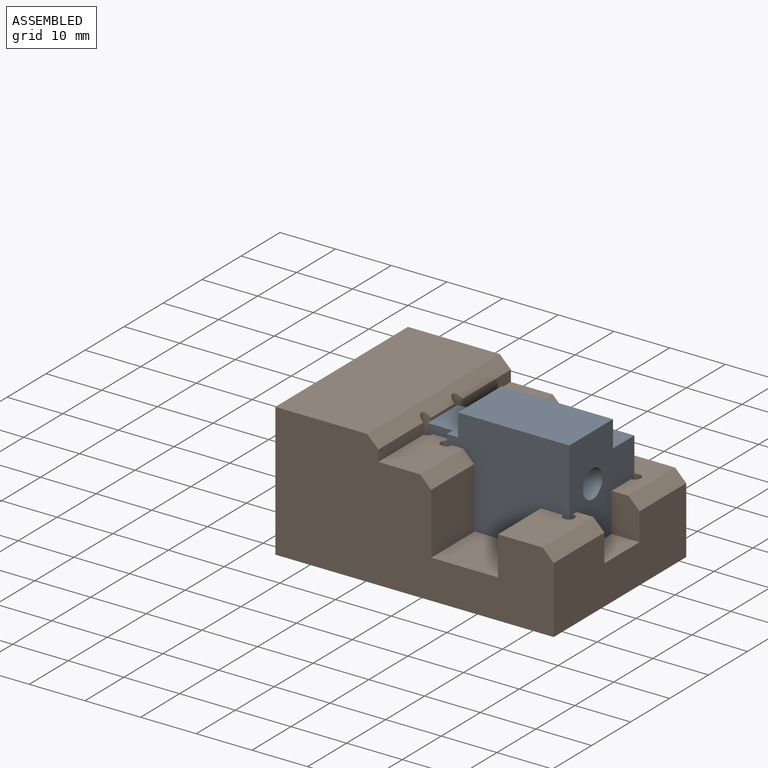
[diagram: assembled view]
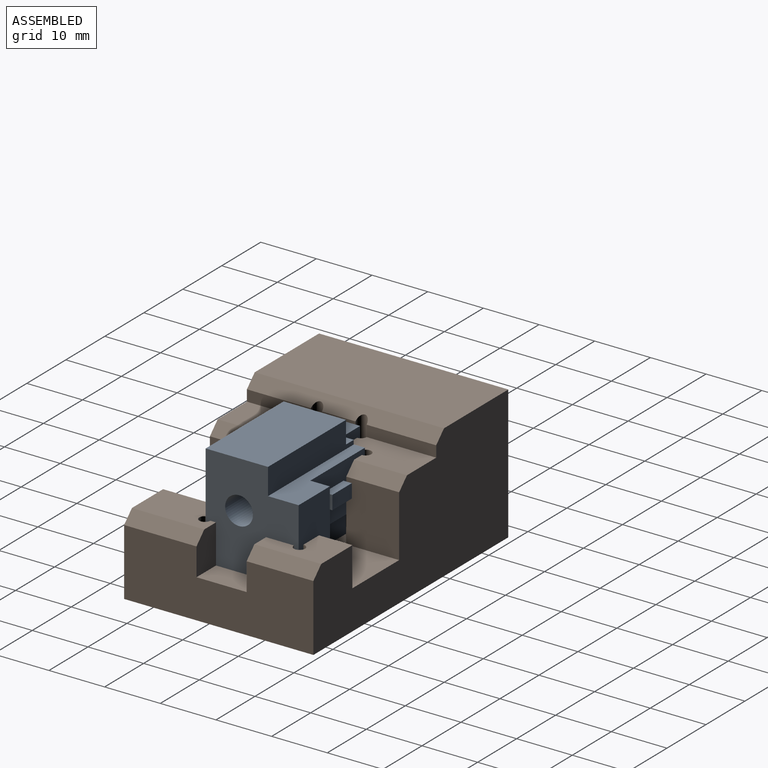
[diagram: assembled view, second angle]
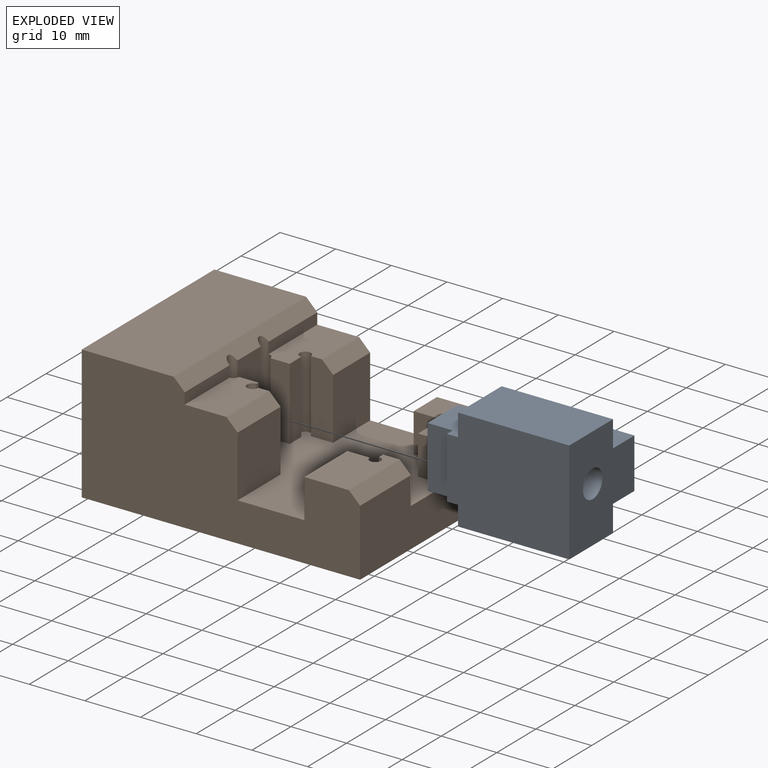
[diagram: exploded view]
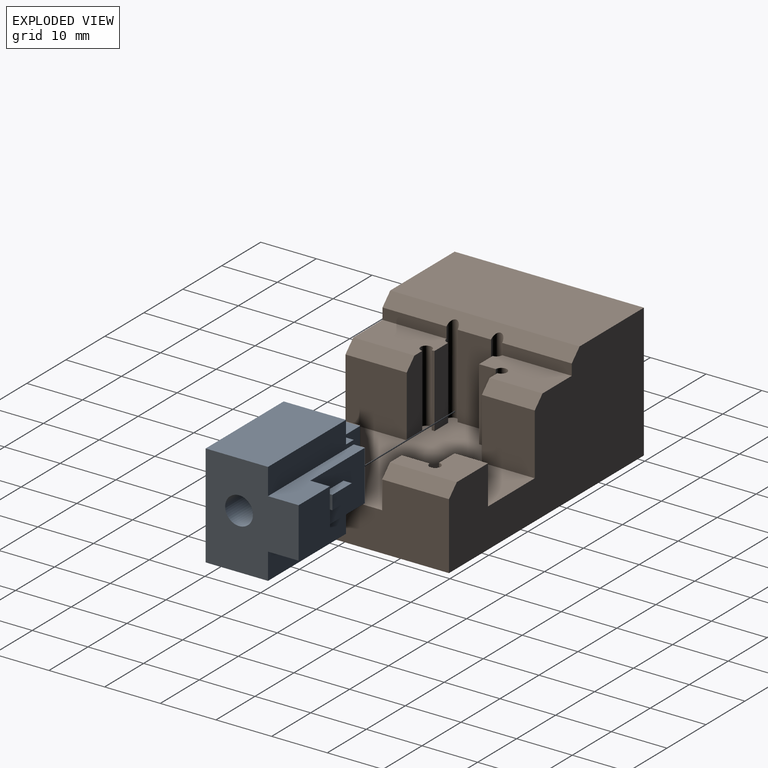
[diagram: exploded view, second angle]
ASSEMBLY  parts=2 mates=2
PART A: 26 faces, bbox 16.7x26.5x18.5 mm
  f0: plane 18.5x16.7mm, normal (0,-1,0), area 237.1mm2, adj f1,f8,f12,f13,f21,f22,f23,f24
  f1: plane 9x8mm, normal (1,0,0), area 72mm2, adj f0,f6,f23,f24
  f2: plane 14x9mm, normal (1,0,0), area 113.5mm2, adj f3,f6,f14,f15,f16,f17,f23,f24
  f3: plane 11x4mm, normal (0,1,0), area 40mm2, adj f2,f5,f11,f20,f22,f23,f24,f25
  f4: plane 11.2x4mm, normal (0,1,0), area 44.8mm2, adj f5,f8,f12,f22
  f5: plane 11.2x6.5mm, normal (0,0,1), area 57.1mm2, adj f3,f4,f7,f8,f9,f10,f11,f22
  f6: plane 9x3.5mm, normal (0,1,0), area 31.5mm2, adj f1,f2,f23,f24
  f7: plane 11x7.7mm, normal (0,1,0), area 65.1mm2, adj f5,f9,f11,f20,f21
  f8: plane 22x18.5mm, normal (-1,0,0), area 392mm2, adj f0,f4,f5,f10,f12,f13,f19,f20
  f9: plane 11x4.5mm, normal (-1,0,0), area 49.5mm2, adj f5,f7,f10,f20
  f10: plane 11x1.5mm, normal (0,1,0), area 16.5mm2, adj f5,f8,f9,f20
  f11: plane 11x4.5mm, normal (1,0,0), area 49.5mm2, adj f3,f5,f7,f20
  f12: plane 20x11.2mm, normal (0,0,1), area 224mm2, adj f0,f4,f8,f22
  f13: plane 20x11.2mm, normal (0,0,-1), area 224mm2, adj f0,f8,f19,f25
  f14: plane 5x1.5mm, normal (0,0,-1), area 7.5mm2, adj f2,f15,f17,f18
  f15: plane 2.5x1.5mm, normal (0,1,0), area 3.7mm2, adj f2,f14,f16,f18
  f16: plane 5x1.5mm, normal (0,0,1), area 7.5mm2, adj f2,f15,f17,f18
  f17: plane 2.5x1.5mm, normal (0,-1,0), area 3.7mm2, adj f2,f14,f16,f18
  f18: plane 5x2.5mm, normal (1,0,0), area 12.5mm2, adj f14,f15,f16,f17
  f19: plane 11.2x3.5mm, normal (0,1,0), area 39.2mm2, adj f8,f13,f20,f25
  f20: plane 11.2x6.5mm, normal (0,0,-1), area 57.1mm2, adj f3,f7,f8,f9,f10,f11,f19,f25
  f21: cylinder r=2.5mm len=26.5mm, axis (0,-1,0), area 416.3mm2, adj f0,f7
  f22: plane 22x4.75mm, normal (1,0,0), area 96.5mm2, adj f0,f3,f4,f5,f12,f23
  f23: plane 22x5.5mm, normal (0,0,1), area 72mm2, adj f0,f1,f2,f3,f6,f22
  f24: plane 22x5.5mm, normal (0,0,-1), area 72mm2, adj f0,f1,f2,f3,f6,f25
  f25: plane 22x4.75mm, normal (1,0,0), area 97.5mm2, adj f0,f3,f13,f19,f20,f24
PART B: 43 faces, bbox 50x34x24 mm
  f0: plane 34x16.5mm, normal (0,0,1), area 561mm2, adj f7,f8,f11,f42
  f1: plane 12.5x2mm, normal (1,0,0), area 25mm2, adj f8,f30,f35,f42
  f2: plane 15x6mm, normal (1,0,0), area 90mm2, adj f4,f32,f35,f42
  f3: plane 11x9.5mm, normal (1,0,0), area 104.5mm2, adj f4,f8,f29,f39
  f4: plane 34x32.5mm, normal (0,0,1), area 655.6mm2, adj f2,f3,f5,f6,f7,f8,f9,f10
  f5: plane 13x3mm, normal (1,0,0), area 39mm2, adj f4,f25,f30,f34
  f6: plane 13x0.5mm, normal (1,0,0), area 6.5mm2, adj f4,f24,f31,f33
  f7: plane 50x24mm, normal (0,-1,0), area 852mm2, adj f0,f4,f9,f11,f13,f18,f23,f26
  f8: plane 50x24mm, normal (0,1,0), area 852mm2, adj f0,f1,f3,f4,f9,f11,f13,f21
  f9: plane 34x12mm, normal (1,0,0), area 363mm2, adj f4,f7,f8,f13,f14,f15,f40,f41
  f10: plane 7x1mm, normal (-1,0,0), area 7mm2, adj f4,f15,f23,f36
  f11: plane 34x24mm, normal (-1,0,0), area 777.5mm2, adj f0,f7,f8,f13,f16
  f12: plane 7x5mm, normal (-1,0,0), area 35mm2, adj f4,f14,f22,f37
  f13: plane 50x34mm, normal (0,0,-1), area 1700mm2, adj f7,f8,f9,f11
  f14: plane 7x5mm, normal (0,-1,0), area 33mm2, adj f4,f9,f12,f22,f41
  f15: plane 7x5mm, normal (0,1,0), area 33mm2, adj f4,f9,f10,f23,f40
  f16: cylinder r=3.5mm len=7mm, axis (-1,0,0), area 131.9mm2, adj f11,f17
  f17: plane 7x7mm, normal (-1,0,0), area 38.5mm2, adj f16
  f18: plane 11x7mm, normal (-1,0,0), area 77mm2, adj f4,f7,f19,f23
  f19: plane 7x4mm, normal (0,1,0), area 28mm2, adj f4,f18,f23,f36
  f20: plane 7x4mm, normal (0,-1,0), area 28mm2, adj f4,f21,f22,f37
  f21: plane 7x6mm, normal (-1,0,0), area 42mm2, adj f4,f8,f20,f22
  f22: plane 12x8mm, normal (0,0,1), area 63.6mm2, adj f8,f12,f14,f20,f21,f37,f41
  f23: plane 13x8mm, normal (0,0,1), area 91.6mm2, adj f7,f10,f15,f18,f19,f36,f40
  f24: plane 13x3.5mm, normal (0,1,0), area 45.5mm2, adj f4,f6,f31,f32
  f25: plane 13x3.5mm, normal (0,-1,0), area 45.5mm2, adj f4,f5,f30,f35
  f26: plane 11.5x2mm, normal (1,0,0), area 23mm2, adj f7,f31,f32,f42
  f27: plane 13x4mm, normal (0,1,0), area 50mm2, adj f4,f28,f31,f33,f38
  f28: plane 11x11mm, normal (1,0,0), area 121mm2, adj f4,f7,f27,f38
  f29: plane 13x4mm, normal (0,-1,0), area 50mm2, adj f3,f4,f30,f34,f39
  f30: plane 13.5x7.5mm, normal (0,0,1), area 86.1mm2, adj f1,f5,f8,f25,f29,f34,f35,f39
  f31: plane 12.5x7.5mm, normal (0,0,1), area 86.1mm2, adj f6,f7,f24,f26,f27,f32,f33,f38
  f32: cylinder r=1mm len=16mm, axis (0,0,1), area 69.5mm2, adj f2,f4,f24,f26,f31,f42
  f33: cylinder r=1mm len=13mm, axis (0,0,1), area 61.3mm2, adj f4,f6,f27,f31
  f34: cylinder r=1mm len=13mm, axis (0,0,1), area 61.3mm2, adj f4,f5,f29,f30
  f35: cylinder r=1mm len=16mm, axis (0,0,1), area 69.5mm2, adj f1,f2,f4,f25,f30,f42
  f36: cylinder r=1mm len=7mm, axis (0,0,1), area 33mm2, adj f4,f10,f19,f23
  f37: cylinder r=1mm len=7mm, axis (0,0,1), area 33mm2, adj f4,f12,f20,f22
  f38: plane 11x2mm, normal (0.71,0,0.71), area 31.1mm2, adj f7,f27,f28,f31
  f39: plane 9.5x2mm, normal (0.71,0,0.71), area 26.9mm2, adj f3,f8,f29,f30
  f40: plane 13x2mm, normal (0.71,0,0.71), area 36.8mm2, adj f7,f9,f15,f23
  f41: plane 12x2mm, normal (0.71,0,0.71), area 33.9mm2, adj f8,f9,f14,f22
  f42: plane 34x2mm, normal (0.71,0,0.71), area 91.7mm2, adj f0,f1,f2,f7,f8,f26,f32,f35
PLACE A rot(axis=(0,0,1),90deg) t=(-6.5,-16.25,3.25)mm
PLACE B at identity fixed
MATE parallel A.f0 <-> B.f12  axis (1,0,0) through (20,-15.54,3.19)mm
MATE parallel B.f4 <-> A.f13  axis (0,0,1) through (9.31,-16.57,-6)mm
